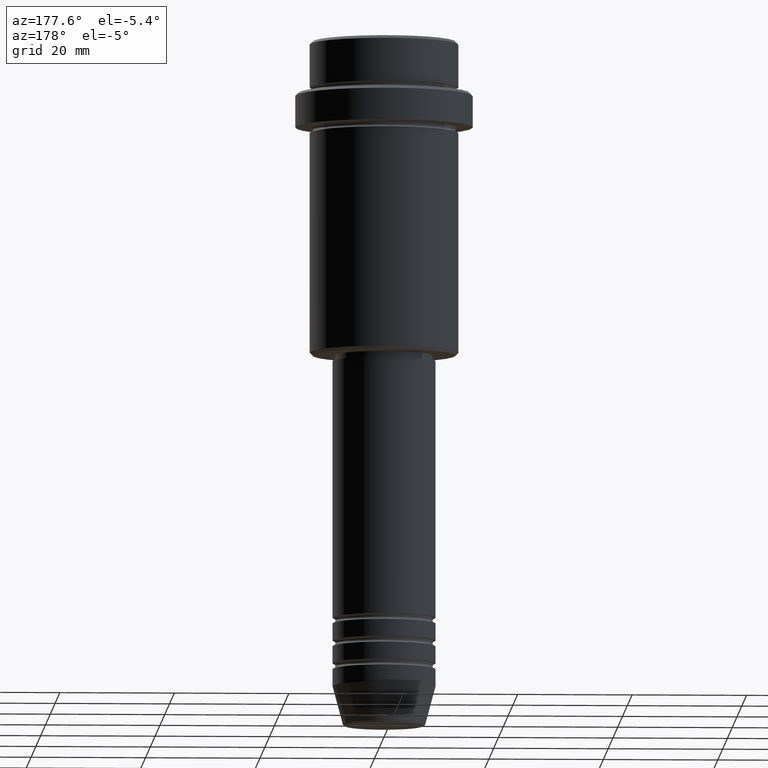
[diagram: clean part render]
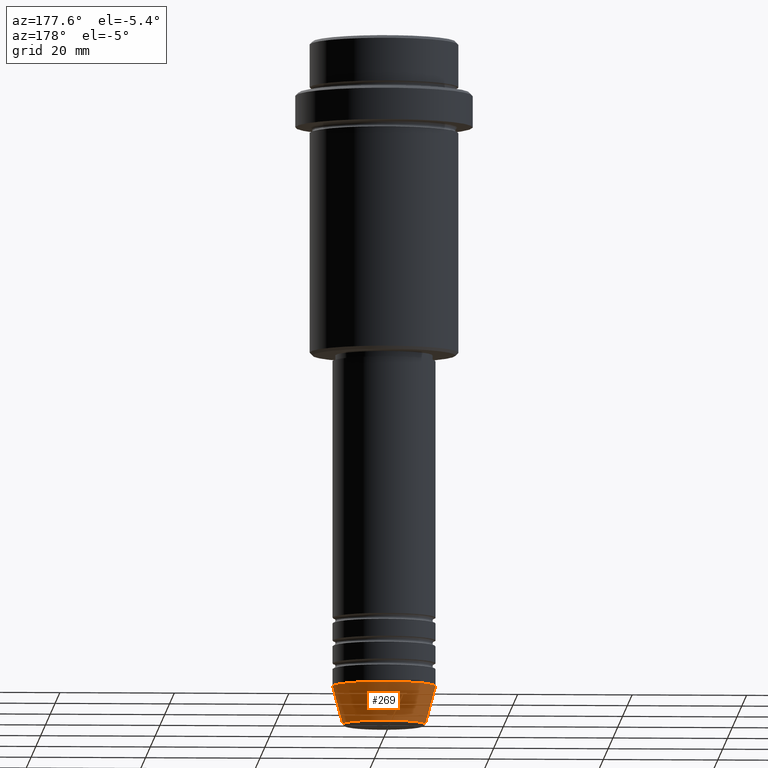
[diagram: same view with one face highlighted and labeled with its STEP entity id]
A machine part, auxiliary view. The second image highlights one B-rep face of the part: STEP entity #269.
In plain terms, the highlighted conical surface has half-angle 15 deg.
Its self-contained STEP definition (entity closure, byte-faithful):
#59 = AXIS2_PLACEMENT_3D ( 'NONE', #645, #748, #780 ) ;
#83 = VECTOR ( 'NONE', #785, 1000.000000000000000 ) ;
#155 = AXIS2_PLACEMENT_3D ( 'NONE', #638, #972, #1277 ) ;
#238 = CARTESIAN_POINT ( 'NONE',  ( -9.000000000000000000, 1.102182119232617714E-15, -113.0000000000000000 ) ) ;
#245 = CARTESIAN_POINT ( 'NONE',  ( -9.000000000000000000, 1.102182119232617714E-15, -113.0000000000000000 ) ) ;
#267 = CIRCLE ( 'NONE', #933, 7.223655072137193045 ) ;
#269 = ADVANCED_FACE ( 'NONE', ( #528 ), #913, .T. ) ;
#362 = LINE ( 'NONE', #245, #83 ) ;
#382 = CARTESIAN_POINT ( 'NONE',  ( 7.223655072137193045, 0.000000000000000000, -119.6294095225512422 ) ) ;
#441 = DIRECTION ( 'NONE',  ( 0.2588190451025213501, 0.000000000000000000, 0.9659258262890680902 ) ) ;
#512 = VERTEX_POINT ( 'NONE', #382 ) ;
#528 = FACE_OUTER_BOUND ( 'NONE', #810, .T. ) ;
#538 = CARTESIAN_POINT ( 'NONE',  ( 9.000000000000000000, 0.000000000000000000, -113.0000000000000000 ) ) ;
#600 = CARTESIAN_POINT ( 'NONE',  ( -7.223655072137193045, 9.934123627281767082E-16, -119.6294095225512422 ) ) ;
#601 = DIRECTION ( 'NONE',  ( -0.000000000000000000, -0.000000000000000000, 1.000000000000000000 ) ) ;
#638 = CARTESIAN_POINT ( 'NONE',  ( 0.000000000000000000, 0.000000000000000000, -113.0000000000000000 ) ) ;
#643 = EDGE_CURVE ( 'NONE', #1357, #783, #997, .T. ) ;
#645 = CARTESIAN_POINT ( 'NONE',  ( 0.000000000000000000, 0.000000000000000000, -113.0000000000000000 ) ) ;
#649 = LINE ( 'NONE', #1307, #891 ) ;
#696 = EDGE_CURVE ( 'NONE', #512, #1357, #649, .T. ) ;
#708 = DIRECTION ( 'NONE',  ( 1.000000000000000000, 0.000000000000000000, 0.000000000000000000 ) ) ;
#743 = ORIENTED_EDGE ( 'NONE', *, *, #696, .F. ) ;
#748 = DIRECTION ( 'NONE',  ( -0.000000000000000000, -0.000000000000000000, 1.000000000000000000 ) ) ;
#780 = DIRECTION ( 'NONE',  ( 1.000000000000000000, 0.000000000000000000, 0.000000000000000000 ) ) ;
#783 = VERTEX_POINT ( 'NONE', #238 ) ;
#785 = DIRECTION ( 'NONE',  ( -0.2588190451025213501, 3.169619151431772337E-17, 0.9659258262890680902 ) ) ;
#810 = EDGE_LOOP ( 'NONE', ( #977, #1363, #964, #743 ) ) ;
#891 = VECTOR ( 'NONE', #441, 1000.000000000000000 ) ;
#913 = CONICAL_SURFACE ( 'NONE', #155, 9.000000000000000000, 0.2617993877991500740 ) ;
#928 = EDGE_CURVE ( 'NONE', #512, #1177, #267, .T. ) ;
#933 = AXIS2_PLACEMENT_3D ( 'NONE', #1239, #601, #708 ) ;
#964 = ORIENTED_EDGE ( 'NONE', *, *, #643, .F. ) ;
#972 = DIRECTION ( 'NONE',  ( -0.000000000000000000, -0.000000000000000000, 1.000000000000000000 ) ) ;
#977 = ORIENTED_EDGE ( 'NONE', *, *, #928, .T. ) ;
#995 = EDGE_CURVE ( 'NONE', #1177, #783, #362, .T. ) ;
#997 = CIRCLE ( 'NONE', #59, 9.000000000000000000 ) ;
#1177 = VERTEX_POINT ( 'NONE', #600 ) ;
#1239 = CARTESIAN_POINT ( 'NONE',  ( 0.000000000000000000, 0.000000000000000000, -119.6294095225512422 ) ) ;
#1277 = DIRECTION ( 'NONE',  ( 1.000000000000000000, 0.000000000000000000, 0.000000000000000000 ) ) ;
#1307 = CARTESIAN_POINT ( 'NONE',  ( 9.000000000000000000, 0.000000000000000000, -113.0000000000000000 ) ) ;
#1357 = VERTEX_POINT ( 'NONE', #538 ) ;
#1363 = ORIENTED_EDGE ( 'NONE', *, *, #995, .T. ) ;